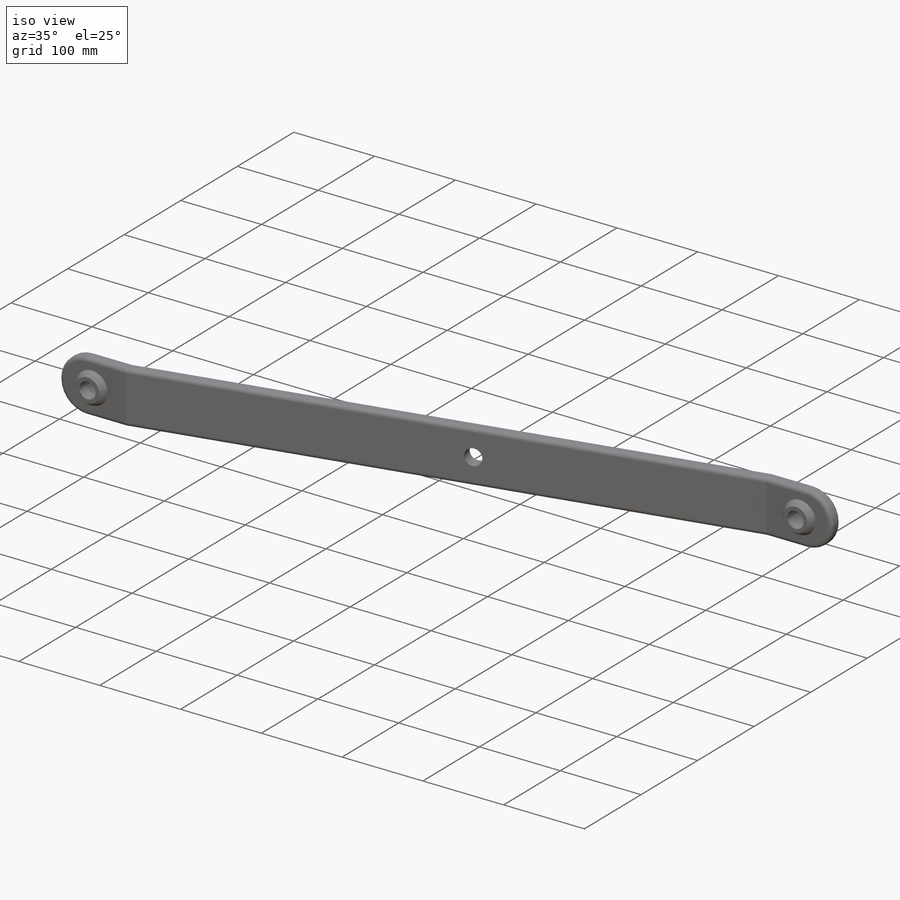
[diagram: iso view]
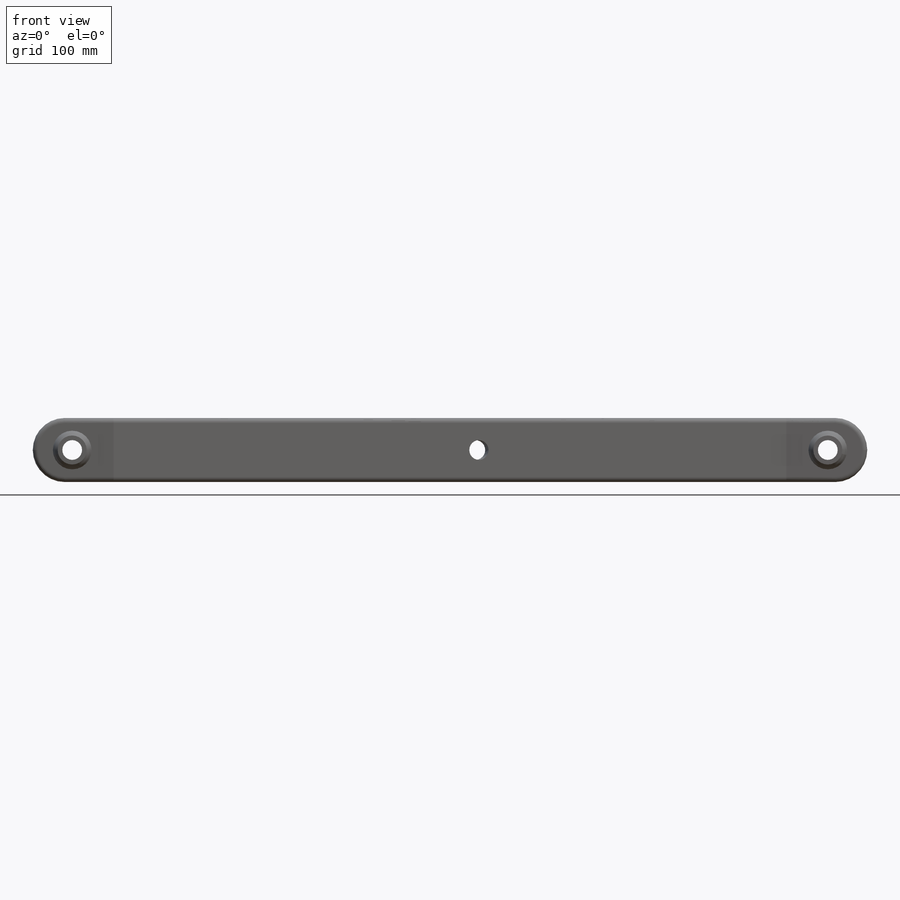
[diagram: front view]
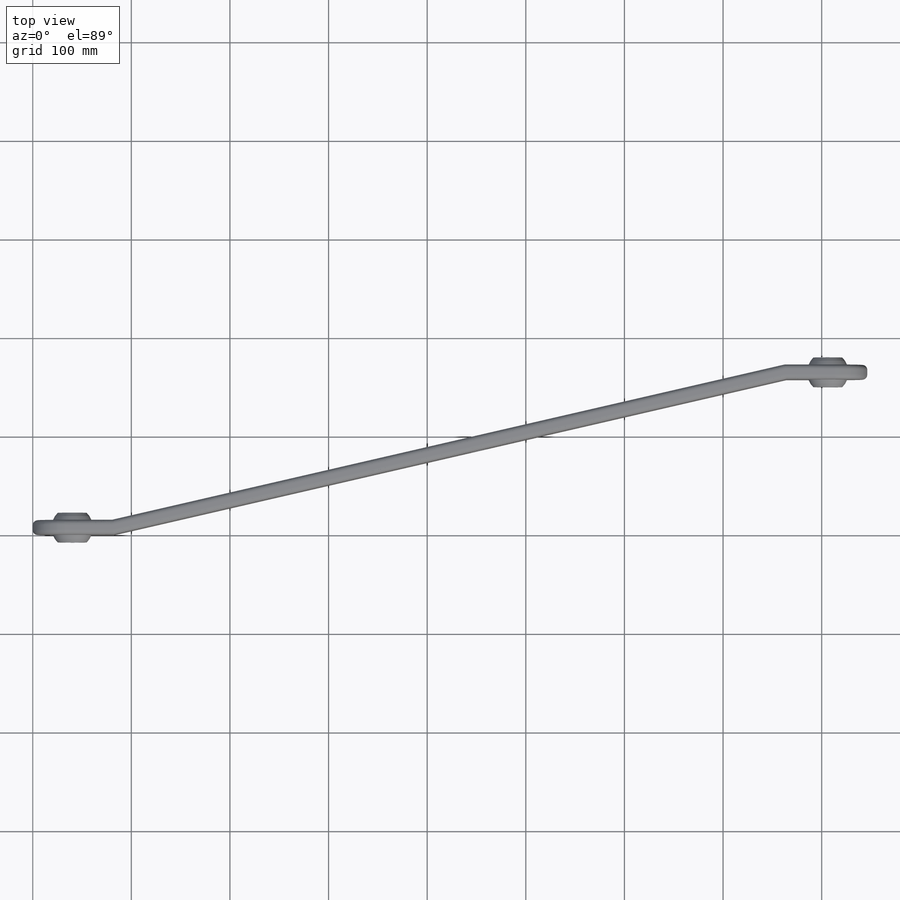
[diagram: top view]
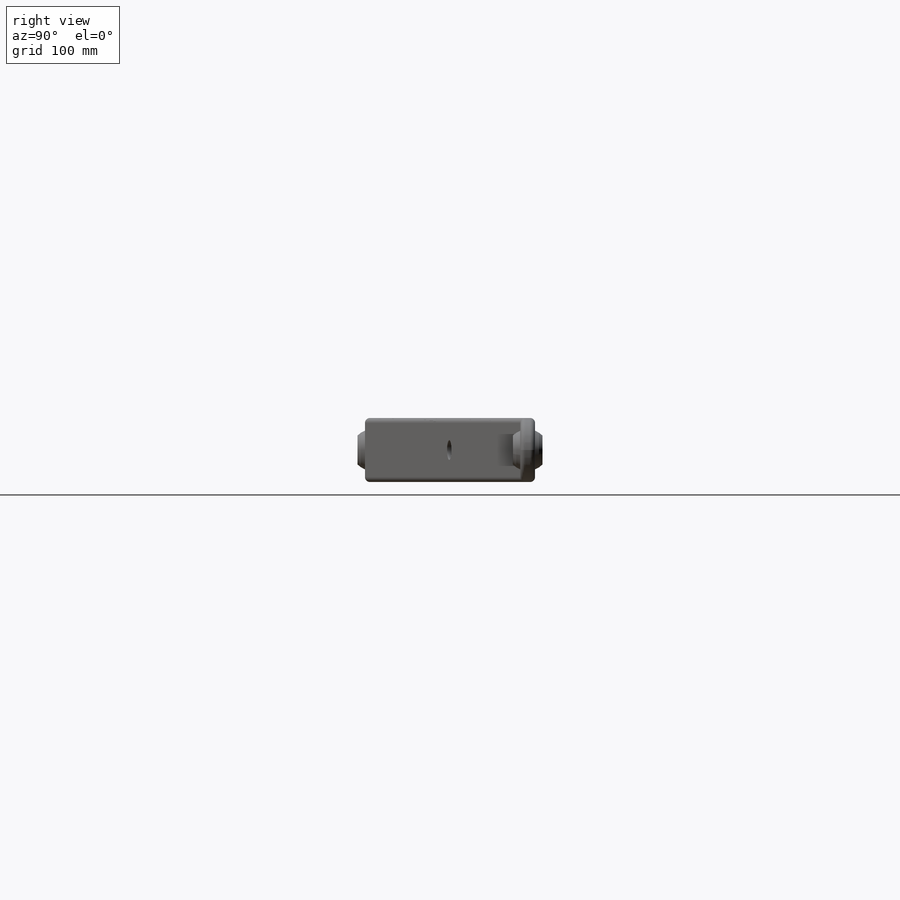
[diagram: right view]
SOLIDWORKS PART (.sldprt)
format: sldprt  version: not decoded by parser v0  size: 240,128 bytes
history: native  units: mm
features: sketch x5, fillet x2, cut_extrude x2, revolve x2, material x1, extrude x1, plane x1 (+13 scaffold rows collapsed)
feature tree (27):
  scaffold x13  (default folders/planes/origin — collapsed)
  material  "Material <not specified>"
  sketch  "Sketch1"  dims[c1.D1=157.5mm c1.D2=82.0mm c1.D3=82.0mm c1.D4=157.5mm c2.D4=13.0deg c2.D5=~14.999998mm c2.D6=~846.20745mm c2.D1=0.0mm c3.D5=15.0mm]
  extrude  "Boss-Extrude1"  Depth=65mm
  fillet  "Fillet2"  Radius=32.5mm
  sketch  "Sketch3"  dims[D1=20.0mm D2=40.0mm D3=40.0mm D4=270.0mm]
  cut_extrude  "Cut-Extrude1"  [1 undecoded]
  plane  "Plane1"
  sketch  "Sketch4"  dims[D1=42.0mm D2=7.5mm]
  revolve  "Revolve1"  Angle=360deg
  sketch  "Sketch5"  dims[D1=42.0mm D2=7.5mm D3=7.5mm]
  revolve  "Revolve2"  Angle=360deg
  sketch  "Sketch6"  dims[D1=20.0mm D2=320.0mm]
  cut_extrude  "Cut-Extrude2"  [1 undecoded]
  fillet  "Fillet3"  Radius=5mm
decode coverage: 10 of 12 modeling features carry decoded parameters
note: ~ marks probable driven/reference dimensions
note: 2 parameter values undecoded
note: suppression state not decoded; provenance and decode notes live in map.json
